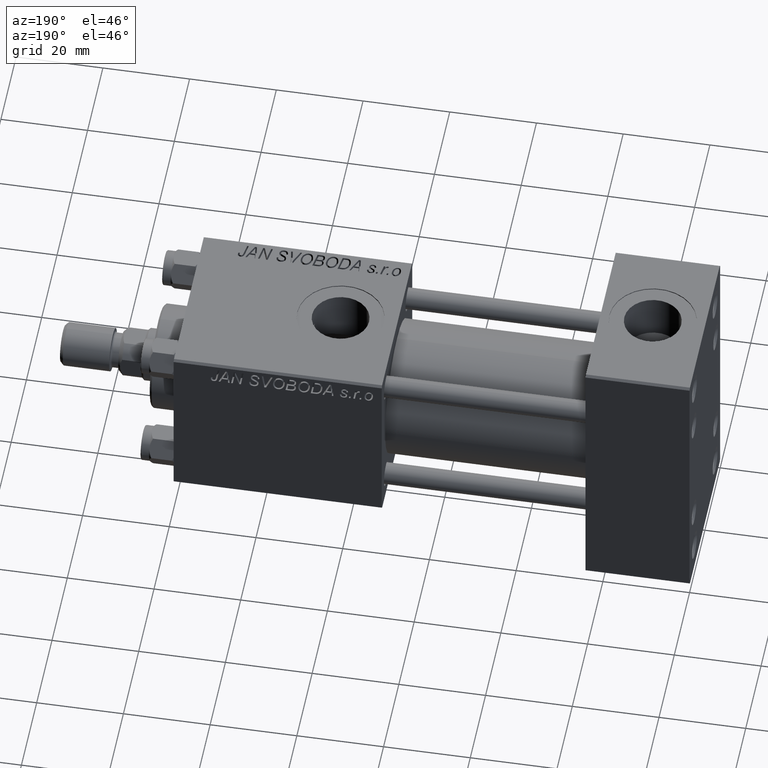
[diagram: clean part render]
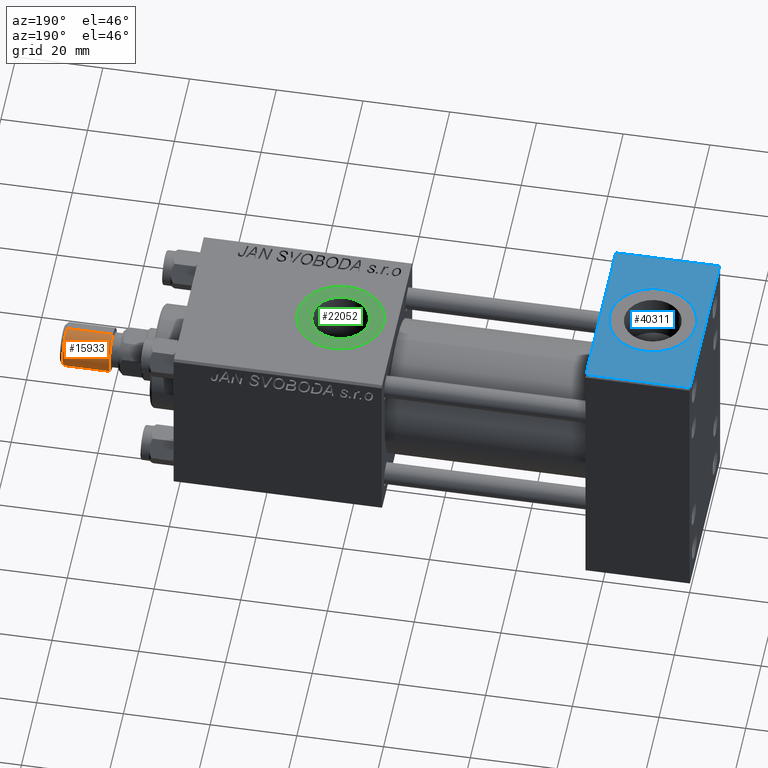
[diagram: same view with three faces highlighted in distinct colors, each labeled with its STEP entity id]
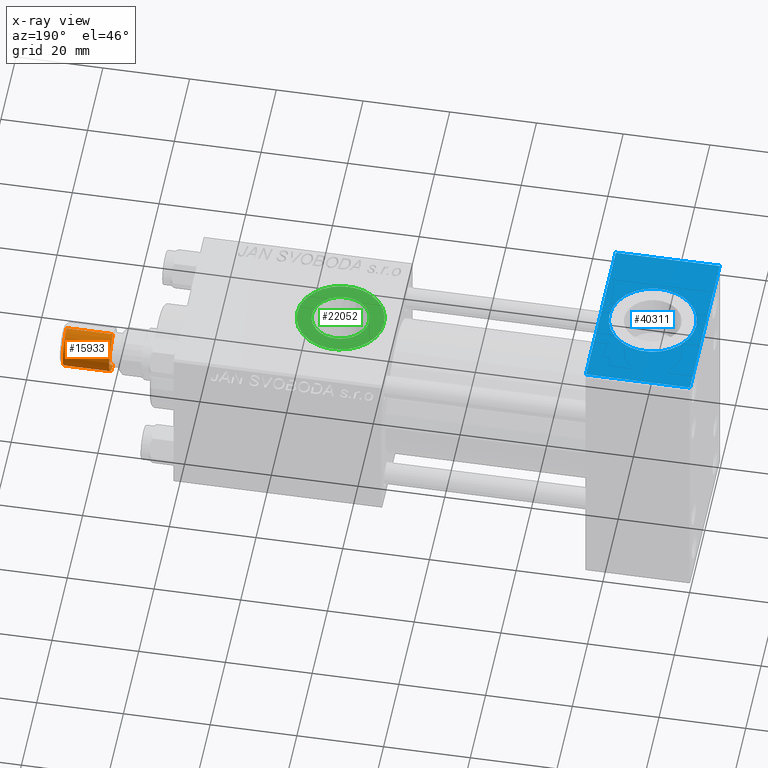
[diagram: x-ray of the same camera — body ghosted, the three highlighted faces saturated]
A machine part, auxiliary view with three faces highlighted in distinct colors.
The next image is the same camera in x-ray (body ghosted, the three faces saturated) — at least one of them is partly hidden behind the body in this view.
Their STEP definitions:

[orange] entity #15933 — the highlighted cylindrical surface (edge-blend (fillet) strip) has radius 5 mm, axis along (1, -0, -0).
#60 = CARTESIAN_POINT ( 'NONE',  ( 0.000000000000000000, 0.000000000000000000, 11.50000000000000000 ) ) ;
#449 = DIRECTION ( 'NONE',  ( -0.000000000000000000, -0.000000000000000000, -1.000000000000000000 ) ) ;
#2061 = CARTESIAN_POINT ( 'NONE',  ( 0.000000000000000000, 0.000000000000000000, 11.50000000000000000 ) ) ;
#2711 = CARTESIAN_POINT ( 'NONE',  ( 5.000000000000000000, 6.123233995736766282E-16, 11.50000000000000000 ) ) ;
#4869 = CYLINDRICAL_SURFACE ( 'NONE', #34638, 5.000000000000000000 ) ;
#7457 = VERTEX_POINT ( 'NONE', #20513 ) ;
#8108 = CARTESIAN_POINT ( 'NONE',  ( -5.000000000000000000, 0.000000000000000000, 11.50000000000000000 ) ) ;
#9626 = VECTOR ( 'NONE', #30364, 1000.000000000000000 ) ;
#10361 = VERTEX_POINT ( 'NONE', #34507 ) ;
#11364 = ORIENTED_EDGE ( 'NONE', *, *, #48718, .T. ) ;
#12032 = DIRECTION ( 'NONE',  ( 1.000000000000000000, 0.000000000000000000, 0.000000000000000000 ) ) ;
#12294 = DIRECTION ( 'NONE',  ( -0.000000000000000000, -0.000000000000000000, 1.000000000000000000 ) ) ;
#13240 = DIRECTION ( 'NONE',  ( 0.000000000000000000, 0.000000000000000000, 1.000000000000000000 ) ) ;
#14854 = CARTESIAN_POINT ( 'NONE',  ( 5.000000000000000000, 6.123233995736766282E-16, 11.50000000000000000 ) ) ;
#15115 = VERTEX_POINT ( 'NONE', #49375 ) ;
#15257 = EDGE_LOOP ( 'NONE', ( #22075, #11364, #46982, #35771 ) ) ;
#15933 = ADVANCED_FACE ( 'NONE', ( #32624 ), #4869, .T. ) ;
#16396 = EDGE_CURVE ( 'NONE', #15115, #7457, #40361, .T. ) ;
#20430 = DIRECTION ( 'NONE',  ( 1.000000000000000000, 0.000000000000000000, 0.000000000000000000 ) ) ;
#20513 = CARTESIAN_POINT ( 'NONE',  ( -5.000000000000000000, 0.000000000000000000, 0.8000000000000020428 ) ) ;
#21675 = EDGE_CURVE ( 'NONE', #10361, #7457, #35357, .T. ) ;
#22075 = ORIENTED_EDGE ( 'NONE', *, *, #44710, .F. ) ;
#24223 = VERTEX_POINT ( 'NONE', #2711 ) ;
#28033 = DIRECTION ( 'NONE',  ( -1.000000000000000000, 0.000000000000000000, 0.000000000000000000 ) ) ;
#30364 = DIRECTION ( 'NONE',  ( -0.000000000000000000, -0.000000000000000000, -1.000000000000000000 ) ) ;
#31859 = DIRECTION ( 'NONE',  ( -0.000000000000000000, -0.000000000000000000, -1.000000000000000000 ) ) ;
#32355 = VECTOR ( 'NONE', #449, 1000.000000000000000 ) ;
#32624 = FACE_OUTER_BOUND ( 'NONE', #15257, .T. ) ;
#33067 = AXIS2_PLACEMENT_3D ( 'NONE', #47431, #12294, #20430 ) ;
#33226 = CIRCLE ( 'NONE', #39707, 5.000000000000000000 ) ;
#33690 = LINE ( 'NONE', #14854, #9626 ) ;
#34507 = CARTESIAN_POINT ( 'NONE',  ( -5.000000000000000000, 0.000000000000000000, 11.50000000000000000 ) ) ;
#34638 = AXIS2_PLACEMENT_3D ( 'NONE', #2061, #31859, #28033 ) ;
#35357 = LINE ( 'NONE', #8108, #32355 ) ;
#35771 = ORIENTED_EDGE ( 'NONE', *, *, #21675, .F. ) ;
#39707 = AXIS2_PLACEMENT_3D ( 'NONE', #60, #13240, #12032 ) ;
#40361 = CIRCLE ( 'NONE', #33067, 5.000000000000000000 ) ;
#44710 = EDGE_CURVE ( 'NONE', #24223, #10361, #33226, .T. ) ;
#46982 = ORIENTED_EDGE ( 'NONE', *, *, #16396, .T. ) ;
#47431 = CARTESIAN_POINT ( 'NONE',  ( 0.000000000000000000, 0.000000000000000000, 0.8000000000000020428 ) ) ;
#48718 = EDGE_CURVE ( 'NONE', #24223, #15115, #33690, .T. ) ;
#49375 = CARTESIAN_POINT ( 'NONE',  ( 5.000000000000000000, 6.123233995736766282E-16, 0.8000000000000020428 ) ) ;

[blue] entity #40311 — the highlighted planar face has unit normal (0, 0, -1).
#486 = ORIENTED_EDGE ( 'NONE', *, *, #47498, .T. ) ;
#1534 = CIRCLE ( 'NONE', #41399, 9.999999999999998224 ) ;
#4594 = DIRECTION ( 'NONE',  ( 0.000000000000000000, -1.000000000000000000, 0.000000000000000000 ) ) ;
#6500 = DIRECTION ( 'NONE',  ( 1.000000000000000000, 0.000000000000000000, 0.000000000000000000 ) ) ;
#7448 = CARTESIAN_POINT ( 'NONE',  ( 24.00000000000000000, 19.99999999999999645, 32.00000000000000000 ) ) ;
#8452 = CARTESIAN_POINT ( 'NONE',  ( 24.00000000000000000, 19.49999999999999645, 32.00000000000000000 ) ) ;
#8592 = EDGE_CURVE ( 'NONE', #40082, #19847, #42340, .T. ) ;
#8748 = AXIS2_PLACEMENT_3D ( 'NONE', #30155, #42371, #41872 ) ;
#10403 = VECTOR ( 'NONE', #6500, 1000.000000000000000 ) ;
#10463 = CARTESIAN_POINT ( 'NONE',  ( 0.000000000000000000, 19.49999999999999645, 32.00000000000000000 ) ) ;
#11345 = CARTESIAN_POINT ( 'NONE',  ( 0.000000000000000000, 19.49999999999999645, 32.00000000000000000 ) ) ;
#12212 = ORIENTED_EDGE ( 'NONE', *, *, #42512, .F. ) ;
#12408 = EDGE_LOOP ( 'NONE', ( #46433, #12212 ) ) ;
#13176 = VERTEX_POINT ( 'NONE', #48873 ) ;
#13745 = VECTOR ( 'NONE', #4594, 1000.000000000000000 ) ;
#14449 = CIRCLE ( 'NONE', #8748, 9.999999999999998224 ) ;
#14905 = VECTOR ( 'NONE', #27029, 1000.000000000000000 ) ;
#15140 = LINE ( 'NONE', #33742, #10403 ) ;
#15468 = CARTESIAN_POINT ( 'NONE',  ( 12.00000000000000000, 5.204170427930421283E-15, 32.00000000000000000 ) ) ;
#16062 = LINE ( 'NONE', #23692, #13745 ) ;
#16405 = FACE_OUTER_BOUND ( 'NONE', #23051, .T. ) ;
#17153 = DIRECTION ( 'NONE',  ( 0.000000000000000000, 0.000000000000000000, -1.000000000000000000 ) ) ;
#19526 = DIRECTION ( 'NONE',  ( 1.000000000000000000, 0.000000000000000000, 0.000000000000000000 ) ) ;
#19769 = DIRECTION ( 'NONE',  ( 0.000000000000000000, 0.000000000000000000, 1.000000000000000000 ) ) ;
#19847 = VERTEX_POINT ( 'NONE', #36253 ) ;
#20960 = ORIENTED_EDGE ( 'NONE', *, *, #22331, .T. ) ;
#21225 = CARTESIAN_POINT ( 'NONE',  ( 24.00000000000000000, 19.99999999999999645, 32.00000000000000000 ) ) ;
#22331 = EDGE_CURVE ( 'NONE', #30627, #35882, #16062, .T. ) ;
#23051 = EDGE_LOOP ( 'NONE', ( #20960, #486, #49942, #48941 ) ) ;
#23214 = EDGE_CURVE ( 'NONE', #46614, #13176, #1534, .T. ) ;
#23692 = CARTESIAN_POINT ( 'NONE',  ( 0.000000000000000000, 19.99999999999999645, 32.00000000000000000 ) ) ;
#24285 = PLANE ( 'NONE',  #33891 ) ;
#25983 = DIRECTION ( 'NONE',  ( -1.000000000000000000, 0.000000000000000000, 0.000000000000000000 ) ) ;
#27029 = DIRECTION ( 'NONE',  ( 0.000000000000000000, -1.000000000000000000, 0.000000000000000000 ) ) ;
#28099 = EDGE_CURVE ( 'NONE', #40082, #30627, #45859, .T. ) ;
#28100 = FACE_BOUND ( 'NONE', #12408, .T. ) ;
#29757 = CARTESIAN_POINT ( 'NONE',  ( 0.000000000000000000, -19.50000000000001776, 32.00000000000000000 ) ) ;
#30155 = CARTESIAN_POINT ( 'NONE',  ( 12.00000000000000000, 5.204170427930421283E-15, 32.00000000000000000 ) ) ;
#30627 = VERTEX_POINT ( 'NONE', #11345 ) ;
#33742 = CARTESIAN_POINT ( 'NONE',  ( 24.00000000000000000, -19.50000000000001776, 32.00000000000000000 ) ) ;
#33891 = AXIS2_PLACEMENT_3D ( 'NONE', #21225, #17153, #39822 ) ;
#35882 = VERTEX_POINT ( 'NONE', #29757 ) ;
#36253 = CARTESIAN_POINT ( 'NONE',  ( 24.00000000000000000, -19.50000000000001776, 32.00000000000000000 ) ) ;
#37739 = CARTESIAN_POINT ( 'NONE',  ( 22.00000000000000000, 5.204170427930421283E-15, 32.00000000000000000 ) ) ;
#39822 = DIRECTION ( 'NONE',  ( -1.000000000000000000, 0.000000000000000000, -0.000000000000000000 ) ) ;
#40082 = VERTEX_POINT ( 'NONE', #8452 ) ;
#40311 = ADVANCED_FACE ( 'NONE', ( #28100, #16405 ), #24285, .F. ) ;
#41399 = AXIS2_PLACEMENT_3D ( 'NONE', #15468, #19769, #19526 ) ;
#41872 = DIRECTION ( 'NONE',  ( 1.000000000000000000, 0.000000000000000000, 0.000000000000000000 ) ) ;
#42340 = LINE ( 'NONE', #7448, #14905 ) ;
#42371 = DIRECTION ( 'NONE',  ( 0.000000000000000000, 0.000000000000000000, 1.000000000000000000 ) ) ;
#42512 = EDGE_CURVE ( 'NONE', #13176, #46614, #14449, .T. ) ;
#45859 = LINE ( 'NONE', #10463, #46304 ) ;
#46304 = VECTOR ( 'NONE', #25983, 1000.000000000000000 ) ;
#46433 = ORIENTED_EDGE ( 'NONE', *, *, #23214, .F. ) ;
#46614 = VERTEX_POINT ( 'NONE', #37739 ) ;
#47498 = EDGE_CURVE ( 'NONE', #35882, #19847, #15140, .T. ) ;
#48873 = CARTESIAN_POINT ( 'NONE',  ( 2.000000000000003553, 6.428817227077774342E-15, 32.00000000000000000 ) ) ;
#48941 = ORIENTED_EDGE ( 'NONE', *, *, #28099, .T. ) ;
#49942 = ORIENTED_EDGE ( 'NONE', *, *, #8592, .F. ) ;

[green] entity #22052 — the highlighted planar face has unit normal (0, 0, 1).
#5698 = CARTESIAN_POINT ( 'NONE',  ( 84.00000000000000000, -1.734723475976806897E-15, 19.80000000000000071 ) ) ;
#5893 = DIRECTION ( 'NONE',  ( 0.000000000000000000, 0.000000000000000000, 1.000000000000000000 ) ) ;
#7218 = CARTESIAN_POINT ( 'NONE',  ( 84.00000000000000000, -1.734723475976806897E-15, 19.80000000000000071 ) ) ;
#7878 = AXIS2_PLACEMENT_3D ( 'NONE', #7218, #22488, #38037 ) ;
#8345 = ORIENTED_EDGE ( 'NONE', *, *, #41612, .F. ) ;
#12776 = EDGE_CURVE ( 'NONE', #27551, #35408, #46737, .T. ) ;
#13673 = AXIS2_PLACEMENT_3D ( 'NONE', #5698, #25798, #14113 ) ;
#14087 = FACE_OUTER_BOUND ( 'NONE', #17934, .T. ) ;
#14113 = DIRECTION ( 'NONE',  ( 1.000000000000000000, 0.000000000000000000, 0.000000000000000000 ) ) ;
#15692 = CARTESIAN_POINT ( 'NONE',  ( 90.58000000000154728, -1.734723475976806897E-15, 19.80000000000000071 ) ) ;
#16082 = CIRCLE ( 'NONE', #13673, 6.580000000001542837 ) ;
#17934 = EDGE_LOOP ( 'NONE', ( #46844, #39713 ) ) ;
#18612 = CARTESIAN_POINT ( 'NONE',  ( 84.00000000000000000, -1.734723475976806897E-15, 19.80000000000000071 ) ) ;
#19973 = EDGE_CURVE ( 'NONE', #25616, #47319, #16082, .T. ) ;
#20930 = FACE_BOUND ( 'NONE', #21801, .T. ) ;
#21696 = DIRECTION ( 'NONE',  ( 0.000000000000000000, 0.000000000000000000, 1.000000000000000000 ) ) ;
#21801 = EDGE_LOOP ( 'NONE', ( #8345, #49884 ) ) ;
#21951 = CARTESIAN_POINT ( 'NONE',  ( 84.00000000000000000, -1.734723475976806897E-15, 19.80000000000000071 ) ) ;
#22052 = ADVANCED_FACE ( 'NONE', ( #20930, #14087 ), #29592, .T. ) ;
#22488 = DIRECTION ( 'NONE',  ( 0.000000000000000000, 0.000000000000000000, 1.000000000000000000 ) ) ;
#22525 = CIRCLE ( 'NONE', #7878, 6.580000000001542837 ) ;
#24500 = DIRECTION ( 'NONE',  ( 0.000000000000000000, 0.000000000000000000, 1.000000000000000000 ) ) ;
#24994 = DIRECTION ( 'NONE',  ( 1.000000000000000000, 0.000000000000000000, 0.000000000000000000 ) ) ;
#25616 = VERTEX_POINT ( 'NONE', #26392 ) ;
#25773 = DIRECTION ( 'NONE',  ( 1.000000000000000000, 0.000000000000000000, -0.000000000000000000 ) ) ;
#25798 = DIRECTION ( 'NONE',  ( 0.000000000000000000, 0.000000000000000000, 1.000000000000000000 ) ) ;
#26392 = CARTESIAN_POINT ( 'NONE',  ( 77.41999999999846693, -9.289058821376599092E-16, 19.80000000000000071 ) ) ;
#27551 = VERTEX_POINT ( 'NONE', #49864 ) ;
#29592 = PLANE ( 'NONE',  #37336 ) ;
#32293 = AXIS2_PLACEMENT_3D ( 'NONE', #43872, #24500, #24994 ) ;
#35408 = VERTEX_POINT ( 'NONE', #39321 ) ;
#37336 = AXIS2_PLACEMENT_3D ( 'NONE', #21951, #21696, #25773 ) ;
#37716 = DIRECTION ( 'NONE',  ( 1.000000000000000000, 0.000000000000000000, 0.000000000000000000 ) ) ;
#38037 = DIRECTION ( 'NONE',  ( 1.000000000000000000, 0.000000000000000000, 0.000000000000000000 ) ) ;
#38807 = CIRCLE ( 'NONE', #32293, 10.00000000000154898 ) ;
#39321 = CARTESIAN_POINT ( 'NONE',  ( 94.00000000000154898, -1.734723475976806897E-15, 19.80000000000000071 ) ) ;
#39713 = ORIENTED_EDGE ( 'NONE', *, *, #12776, .T. ) ;
#41612 = EDGE_CURVE ( 'NONE', #47319, #25616, #22525, .T. ) ;
#42697 = EDGE_CURVE ( 'NONE', #35408, #27551, #38807, .T. ) ;
#43872 = CARTESIAN_POINT ( 'NONE',  ( 84.00000000000000000, -1.734723475976806897E-15, 19.80000000000000071 ) ) ;
#44309 = AXIS2_PLACEMENT_3D ( 'NONE', #18612, #5893, #37716 ) ;
#46737 = CIRCLE ( 'NONE', #44309, 10.00000000000154898 ) ;
#46844 = ORIENTED_EDGE ( 'NONE', *, *, #42697, .T. ) ;
#47319 = VERTEX_POINT ( 'NONE', #15692 ) ;
#49864 = CARTESIAN_POINT ( 'NONE',  ( 73.99999999999845102, -5.100766768292640183E-16, 19.80000000000000071 ) ) ;
#49884 = ORIENTED_EDGE ( 'NONE', *, *, #19973, .F. ) ;